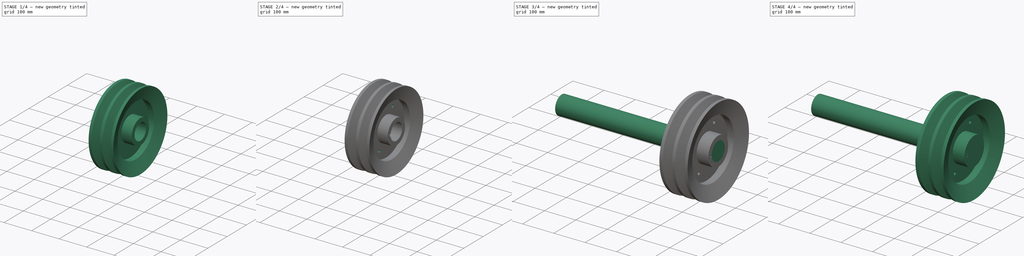
[diagram: build sequence overview — one tinted view per stage of 4, left to right]
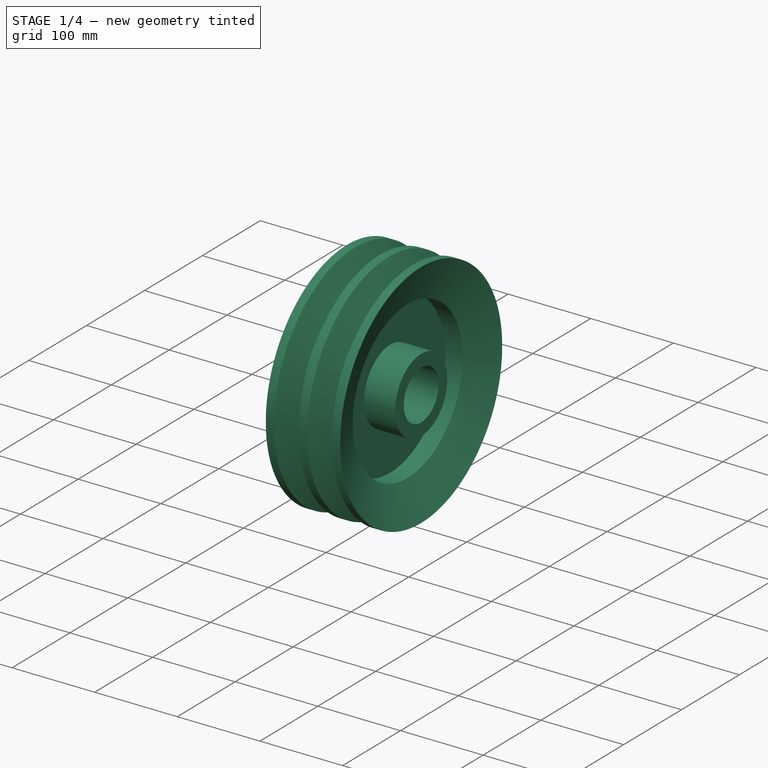
[diagram: stage 1 of 4 — iso view after this stage's code; geometry added in this stage tinted green]
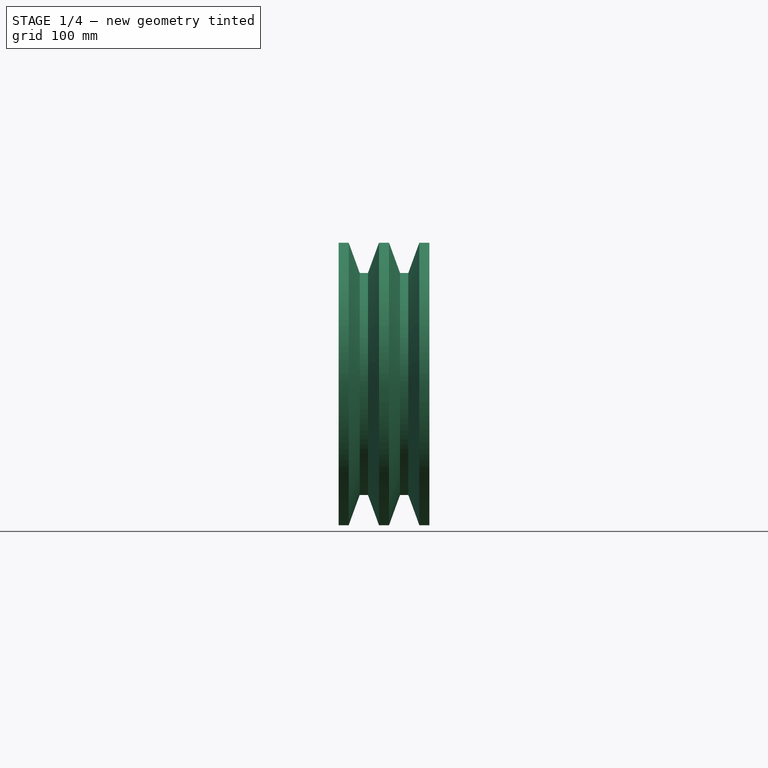
[diagram: stage 1 of 4 — front view after this stage's code; geometry added in this stage tinted green]
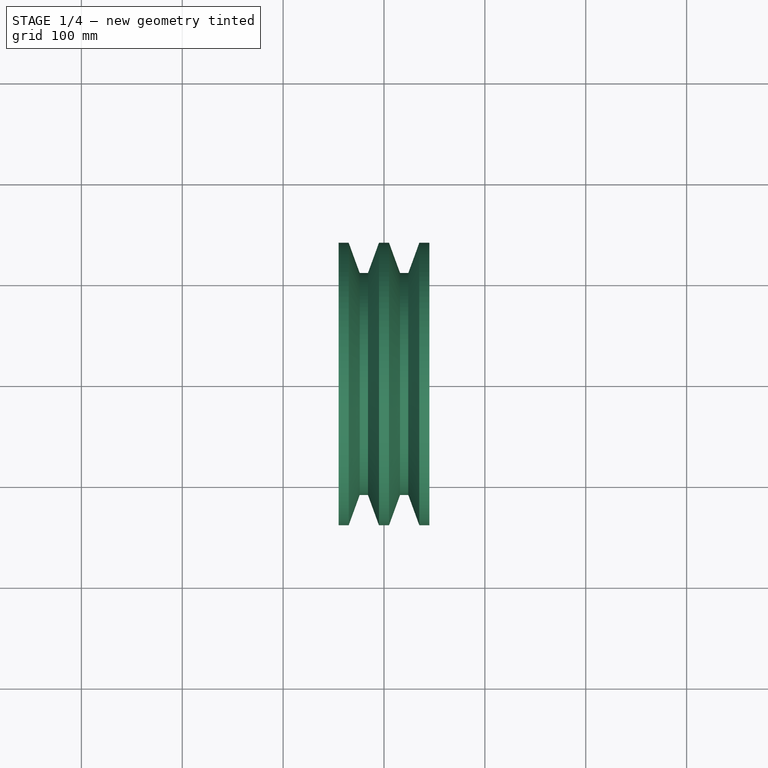
[diagram: stage 1 of 4 — top view after this stage's code; geometry added in this stage tinted green]
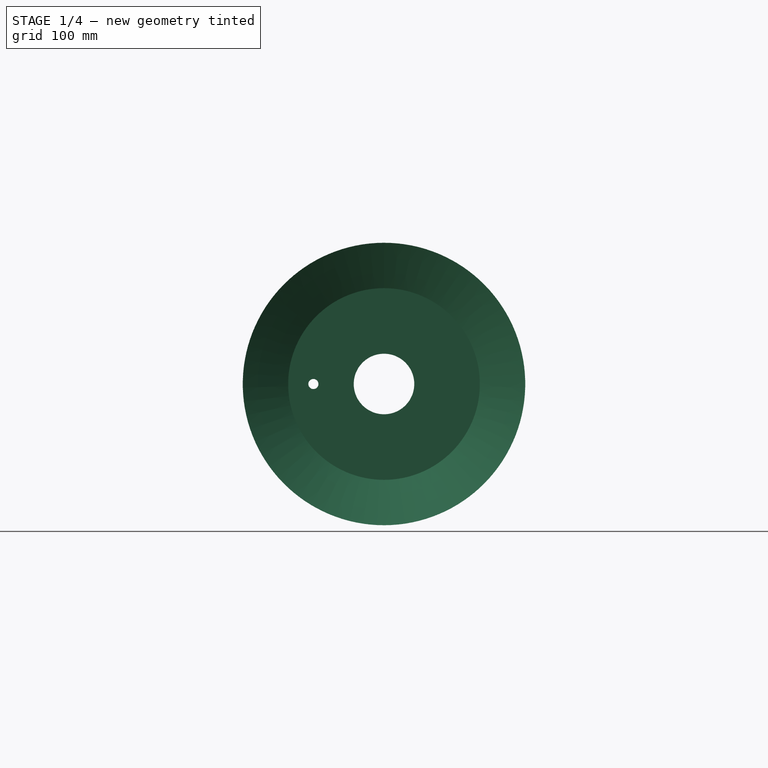
[diagram: stage 1 of 4 — right view after this stage's code; geometry added in this stage tinted green]
FCSTD DOCUMENT  (FreeCAD 0.20R29177 +426 (Git))
Label: Polea
License: All rights reserved
LicenseURL: http://en.wikipedia.org/wiki/All_rights_reserved
objects: Sketcher::SketchObject×9, PartDesign::Body×4, PartDesign::Pad×3, PartDesign::Revolution×2, PartDesign::Pocket×2, PartDesign::PolarPattern×1, PartDesign::FeatureBase×1
note: 29 computed .brp shape members not serialized (recipe doc carries the construction recipe); baked Part::Feature solids carry a one-line shape summary decoded from their .brp

FEATURE [Sketcher::SketchObject] Sketch
  FullyConstrained = false
  MapMode = 5
  Placement = pos=(0,0,0) rot=(1,0,0;1.5708rad)
  Support = -> [XZ_Plane]
  sketch-geometry (21):
    g0: LineSegment StartX=-7.5 StartY=45 StartZ=0 EndX=-45 EndY=45 EndZ=0
    g1: LineSegment StartX=-45 StartY=45 StartZ=0 EndX=-45 EndY=30 EndZ=0
    g2: LineSegment StartX=-45 StartY=30 StartZ=0 EndX=45 EndY=30 EndZ=0
    g3: LineSegment StartX=45 StartY=30 StartZ=0 EndX=45 EndY=45 EndZ=0
    g4: LineSegment StartX=45 StartY=45 StartZ=0 EndX=7.5 EndY=45 EndZ=0
    g5: LineSegment StartX=7.5 StartY=45 StartZ=0 EndX=7.5 EndY=95 EndZ=0
    g6: LineSegment StartX=7.5 StartY=95 StartZ=0 EndX=28.6213 EndY=95 EndZ=0
    g7: LineSegment StartX=28.6213 StartY=95 StartZ=0 EndX=45 EndY=140 EndZ=0
    g8: LineSegment StartX=45 StartY=140 StartZ=0 EndX=35 EndY=140 EndZ=0
    g9: LineSegment StartX=35 StartY=140 StartZ=0 EndX=24.0809 EndY=110 EndZ=0
    g10: LineSegment StartX=24.0809 StartY=110 StartZ=0 EndX=15.9191 EndY=110 EndZ=0
    g11: LineSegment StartX=15.9191 StartY=110 StartZ=0 EndX=5 EndY=140 EndZ=0
    g12: LineSegment StartX=5 StartY=140 StartZ=0 EndX=-5 EndY=140 EndZ=0
    g13: LineSegment StartX=-5 StartY=140 StartZ=0 EndX=-15.9191 EndY=110 EndZ=0
    g14: LineSegment StartX=-15.9191 StartY=110 StartZ=0 EndX=-24.0809 EndY=110 EndZ=0
    g15: LineSegment StartX=-24.0809 StartY=110 StartZ=0 EndX=-35 EndY=140 EndZ=0
    g16: LineSegment StartX=-35 StartY=140 StartZ=0 EndX=-45 EndY=140 EndZ=0
    g17: LineSegment StartX=-45 StartY=140 StartZ=0 EndX=-28.6213 EndY=95 EndZ=0
    g18: LineSegment StartX=-28.6213 StartY=95 StartZ=0 EndX=-7.5 EndY=95 EndZ=0
    g19: LineSegment StartX=-7.5 StartY=95 StartZ=0 EndX=-7.5 EndY=45 EndZ=0
    g20: LineSegment StartX=20 StartY=140.404 StartZ=0 EndX=20 EndY=98.5071 EndZ=0
  constraints (56):
    c: Horizontal(g0)
    c: Coincident(g0,g1)
    c: Coincident(g1,g2)
    c: Coincident(g2,g3)
    c: Coincident(g3,g4)
    c: Horizontal(g4)
    c: Coincident(g4,g5)
    c: Vertical(g5)
    c: Coincident(g5,g6)
    c: Horizontal(g6)
    c: Coincident(g6,g7)
    c: Coincident(g7,g8)
    c: Horizontal(g8)
    c: Coincident(g8,g9)
    c: Coincident(g9,g10)
    c: Horizontal(g10)
    c: Coincident(g10,g11)
    c: Coincident(g11,g12)
    c: Coincident(g12,g13)
    c: Coincident(g13,g14)
    c: Coincident(g14,g15)
    c: Coincident(g15,g16)
    c: Horizontal(g16)
    c: Coincident(g16,g17)
    c: Coincident(g17,g18)
    c: Horizontal(g18)
    c: Coincident(g18,g19)
    c: Coincident(g19,g0)
    c: DistanceX(g2,g2) = 90
    c: Vertical(g1)
    c: Vertical(g3)
    c: Symmetric(g1,g2,g-2)
    c: DistanceY(g-1,g2) = 30
    c: DistanceY(g-1,g3) = 45
    c: DistanceX(g0,g4) = 15
    c: Symmetric(g4,g0,g-2)
    c: Equal(g19,g5)
    c: DistanceY(g-1,g6) = 95
    c: Vertical(g19)
    c: DistanceY(g-1,g7) = 140
    c: Equal(g17,g7)
    c: Equal(g15,g9)
    c: Equal(g10,g14)
    c: DistanceX(g16,g7) = 90
    c: Symmetric(g16,g7,g-2)
    c: Symmetric(g12,g11,g-2)
    c: DistanceX(g15,g12) = 30
    c: Equal(g16,g8)
    c: DistanceY(g9,g8) = 30
    c: Equal(g11,g13)
    c: DistanceX(g8,g8) = 10
    c: Horizontal(g14)
    c: Angle(g9,g11) = 0.698132
    c: Symmetric(g9,g10,g20)
    c: Symmetric(g11,g8,g20)
    c: Angle(g7,g20) = 0.349066
FEATURE [PartDesign::Revolution] Revolution
  Angle = 360
  Axis = (1,0,0)
  Base = (0,0,0)
  Placement = pos=(0,0,0) rot=(1,0,0;1.5708rad)
  Profile = -> Sketch
  ReferenceAxis = -> Sketch [H_Axis]
FEATURE [Sketcher::SketchObject] Sketch001
  FullyConstrained = true
  MapMode = 5
  Placement = pos=(7.5,0,0) rot=(0.707107,0,0.707107;3.14159rad)
  Support = -> [Revolution]
  sketch-geometry (1):
    g0: Circle CenterX=0 CenterY=70 CenterZ=0 NormalX=0 NormalY=0 NormalZ=1 AngleXU=0 Radius=5
  constraints (3):
    c: PointOnObject(g0,g-2)
    c: Diameter(g0) = 10
    c: DistanceY(g-1,g0) = 70
FEATURE [PartDesign::Pocket] Pocket
  BaseFeature = -> Revolution
  Direction = (-1,0,2e-16)
  Length = 5
  Length2 = 5
  Placement = pos=(0,0,0) rot=(1,0,0;1.5708rad)
  Profile = -> Sketch001
  ReferenceAxis = -> Sketch001 [N_Axis]
  Type = 1
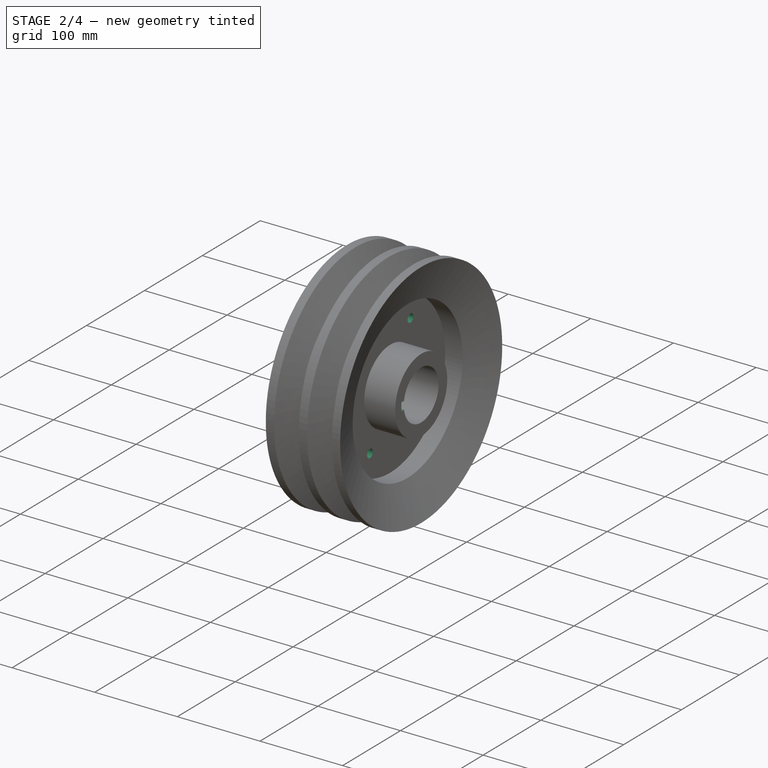
[diagram: stage 2 of 4 — iso view after this stage's code; geometry added in this stage tinted green]
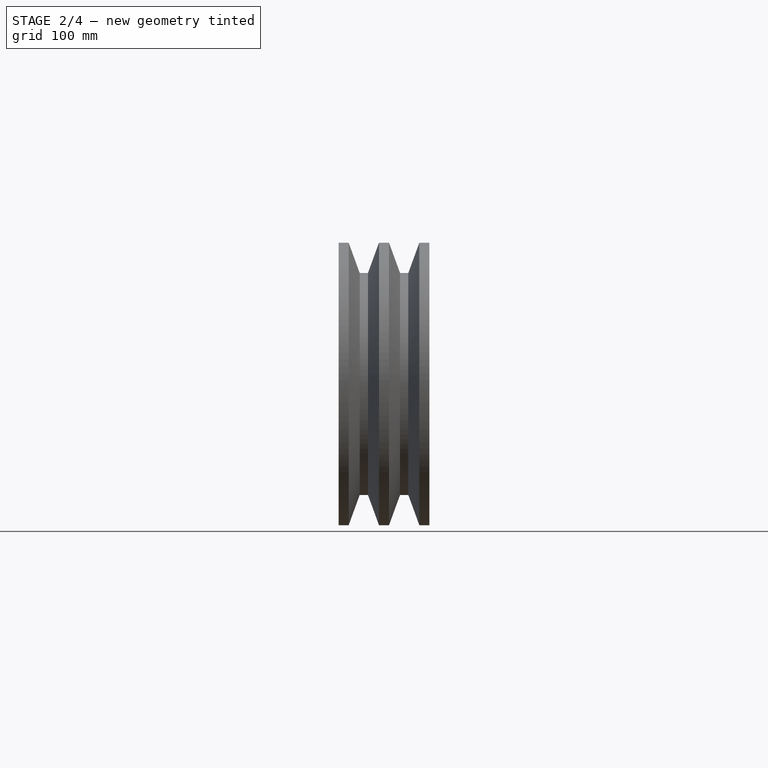
[diagram: stage 2 of 4 — front view after this stage's code; geometry added in this stage tinted green]
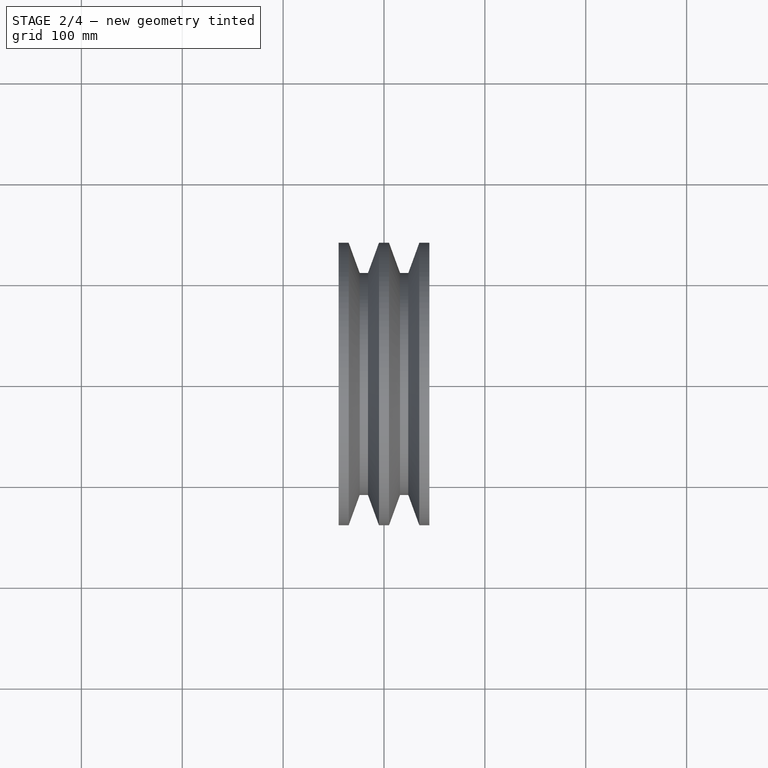
[diagram: stage 2 of 4 — top view after this stage's code; geometry added in this stage tinted green]
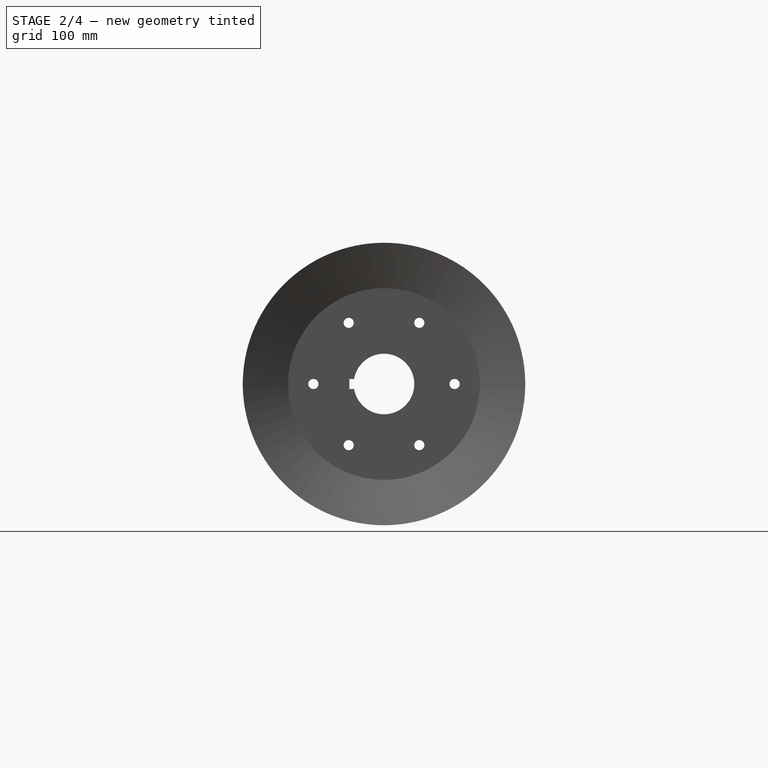
[diagram: stage 2 of 4 — right view after this stage's code; geometry added in this stage tinted green]
FEATURE [PartDesign::PolarPattern] PolarPattern
  Angle = 360
  Axis = -> Sketch001 [N_Axis]
  BaseFeature = -> Pocket
  Occurrences = 6
  Originals = -> [Pocket]
  Placement = pos=(0,0,0) rot=(1,0,0;1.5708rad)
FEATURE [PartDesign::Body] Body002  label="Eje 2"
  Group = -> [Sketch007,Revolution001]
  Origin = -> Origin002
  Tip = -> Revolution001
FEATURE [Sketcher::SketchObject] Sketch008
  FullyConstrained = false
  MapMode = 5
  Placement = pos=(45,0,0) rot=(0.707107,0,0.707107;3.14159rad)
  Support = -> [PolarPattern]
  sketch-geometry (4):
    g0: LineSegment StartX=5 StartY=34.2886 StartZ=0 EndX=-5 EndY=34.2886 EndZ=0
    g1: LineSegment StartX=-5 StartY=34.2886 StartZ=0 EndX=-5 EndY=29.2886 EndZ=0
    g2: LineSegment StartX=-5 StartY=29.2886 StartZ=0 EndX=5 EndY=29.2886 EndZ=0
    g3: LineSegment StartX=5 StartY=29.2886 StartZ=0 EndX=5 EndY=34.2886 EndZ=0
  constraints (10):
    c: Coincident(g0,g1)
    c: Coincident(g1,g2)
    c: Coincident(g2,g3)
    c: Coincident(g3,g0)
    c: Horizontal(g0)
    c: Vertical(g1)
    c: Vertical(g3)
    c: DistanceX(g2,g2) = 10
    c: DistanceY(g3,g3) = 5
    c: Symmetric(g2,g1,g-2)
FEATURE [PartDesign::Pocket] Pocket001
  BaseFeature = -> PolarPattern
  Direction = (-1,0,2e-16)
  Length = 90
  Length2 = 5
  Placement = pos=(0,0,0) rot=(1,0,0;1.5708rad)
  Profile = -> Sketch008
  ReferenceAxis = -> Sketch008 [N_Axis]
  Type = 0
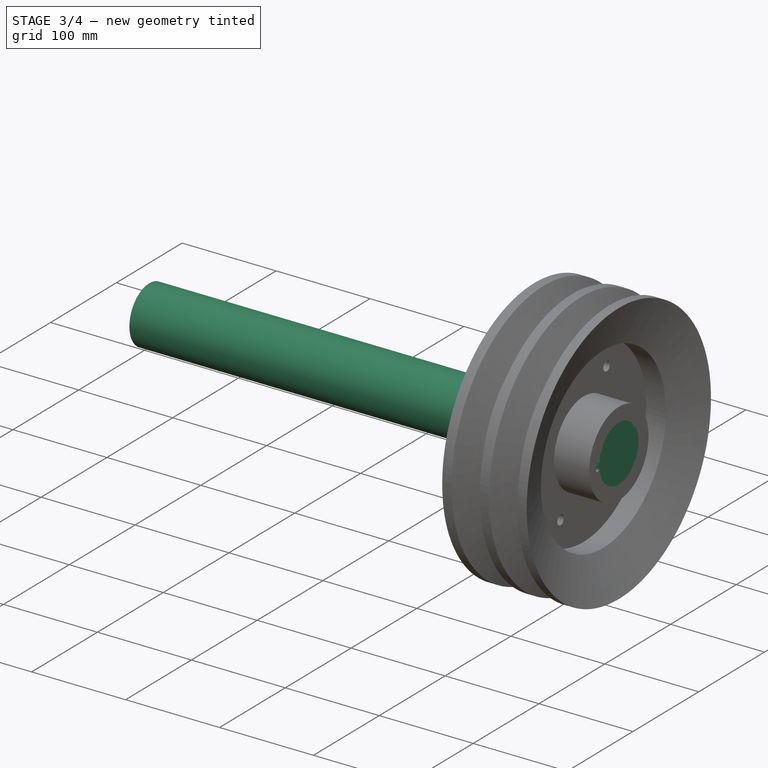
[diagram: stage 3 of 4 — iso view after this stage's code; geometry added in this stage tinted green]
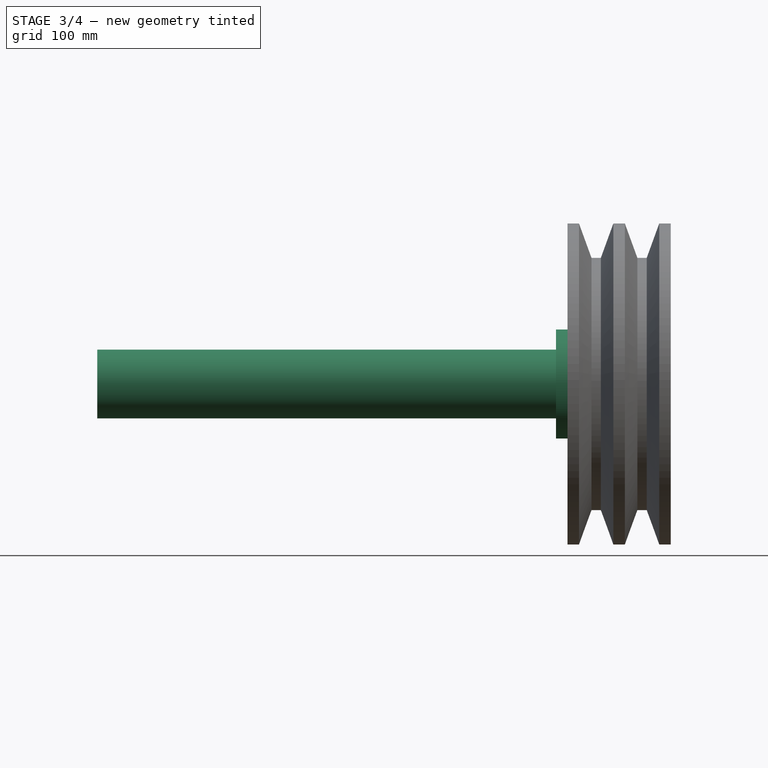
[diagram: stage 3 of 4 — front view after this stage's code; geometry added in this stage tinted green]
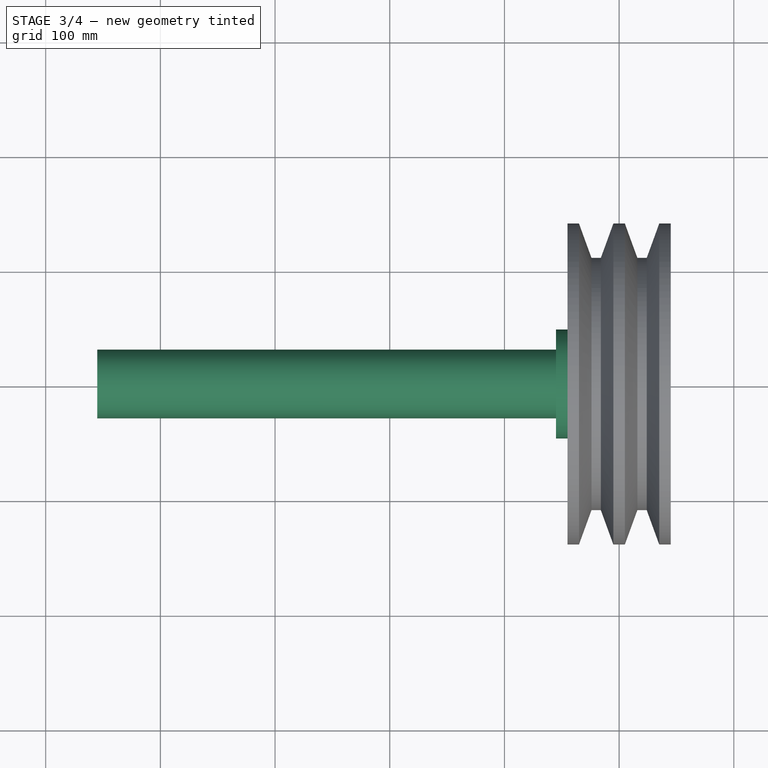
[diagram: stage 3 of 4 — top view after this stage's code; geometry added in this stage tinted green]
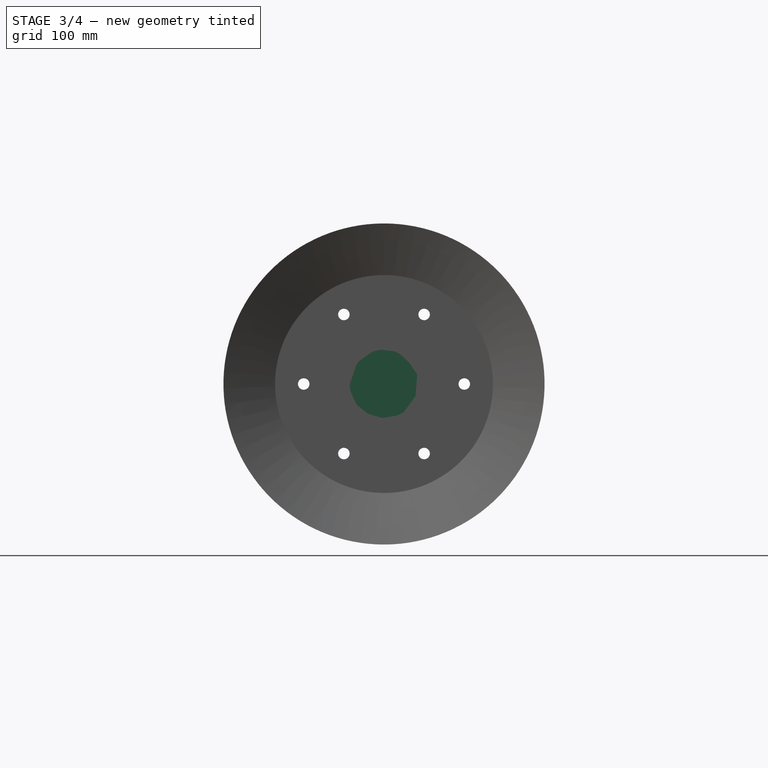
[diagram: stage 3 of 4 — right view after this stage's code; geometry added in this stage tinted green]
FEATURE [Sketcher::SketchObject] Sketch002
  FullyConstrained = true
  MapMode = 5
  Placement = pos=(45,0,0) rot=(0.707107,0,0.707107;3.14159rad)
  Support = -> [PolarPattern]
FEATURE [Sketcher::SketchObject] Sketch003
  FullyConstrained = true
  MapMode = 5
  Placement = pos=(0,0,0) rot=(0.57735,0.57735,0.57735;2.0944rad)
  Support = -> [YZ_Plane001]
  sketch-geometry (1):
    g0: Circle CenterX=0 CenterY=0 CenterZ=0 NormalX=0 NormalY=0 NormalZ=1 AngleXU=0 Radius=30
  constraints (2):
    c: Coincident(g0,g-1)
    c: Diameter(g0) = 60
FEATURE [PartDesign::Pad] Pad
  Direction = (1,-2e-16,3e-16)
  Length = 90
  Length2 = 10
  Midplane = true
  Placement = pos=(0,0,0) rot=(0.57735,0.57735,0.57735;2.0944rad)
  Profile = -> Sketch003
  ReferenceAxis = -> Sketch003 [N_Axis]
  Type = 0
FEATURE [PartDesign::Body] Body001  label="Eje 1"
  Group = -> [Sketch003,Pad,Sketch004,Pad001,Sketch005,Sketch006,Pad002]
  Origin = -> Origin001
  Tip = -> Pad002
FEATURE [Sketcher::SketchObject] Sketch007
  FullyConstrained = false
  MapMode = 5
  Placement = pos=(0,0,0) rot=(1,0,0;1.5708rad)
  Support = -> [XZ_Plane002]
  sketch-geometry (8):
    g0: LineSegment StartX=45 StartY=0 StartZ=0 EndX=45 EndY=30 EndZ=0
    g1: LineSegment StartX=45 StartY=30 StartZ=0 EndX=-45 EndY=30 EndZ=0
    g2: LineSegment StartX=-45 StartY=30 StartZ=0 EndX=-45 EndY=47.5 EndZ=0
    g3: LineSegment StartX=-45 StartY=47.5 StartZ=0 EndX=-55 EndY=47.5 EndZ=0
    g4: LineSegment StartX=-55 StartY=47.5 StartZ=0 EndX=-55 EndY=30 EndZ=0
    g5: LineSegment StartX=-55 StartY=30 StartZ=0 EndX=-455 EndY=30 EndZ=0
    g6: LineSegment StartX=-455 StartY=30 StartZ=0 EndX=-455 EndY=0 EndZ=0
    g7: LineSegment StartX=-455 StartY=0 StartZ=0 EndX=45 EndY=0 EndZ=0
  constraints (22):
    c: PointOnObject(g0,g-1)
    c: Vertical(g0)
    c: Coincident(g0,g1)
    c: Coincident(g1,g2)
    c: Vertical(g2)
    c: Coincident(g2,g3)
    c: Horizontal(g3)
    c: Coincident(g3,g4)
    c: Vertical(g4)
    c: Coincident(g4,g5)
    c: Horizontal(g5)
    c: Coincident(g5,g6)
    c: PointOnObject(g6,g-1)
    c: Coincident(g6,g7)
    c: Coincident(g7,g0)
    c: DistanceX(g1,g1) = 90
    c: DistanceY(g0,g0) = 30
    c: DistanceX(g3,g3) = 10
    c: DistanceX(g5,g5) = 400
    c: DistanceY(g4,g4) = 17.5
    c: Symmetric(g0,g1,g-2)
    c: DistanceX(g7,g7) = 500
FEATURE [PartDesign::Revolution] Revolution001
  Angle = 360
  Axis = (1,0,0)
  Base = (0,0,0)
  Placement = pos=(0,0,0) rot=(1,0,0;1.5708rad)
  Profile = -> Sketch007
  ReferenceAxis = -> X_Axis002
FEATURE [PartDesign::Body] Body  label="Polea"
  Group = -> [Sketch,Revolution,Sketch001,Pocket,PolarPattern,Sketch002,Sketch008,Pocket001]
  Origin = -> Origin
  Tip = -> Pocket001
FEATURE [PartDesign::FeatureBase] Clone
  BaseFeature = -> Body
FEATURE [PartDesign::Body] Body003
  BaseFeature = -> Body
  Group = -> [Clone]
  Origin = -> Origin003
  Placement = pos=(-400,0,0) rot=(0,0,-1;0.069813rad)
  Tip = -> Clone
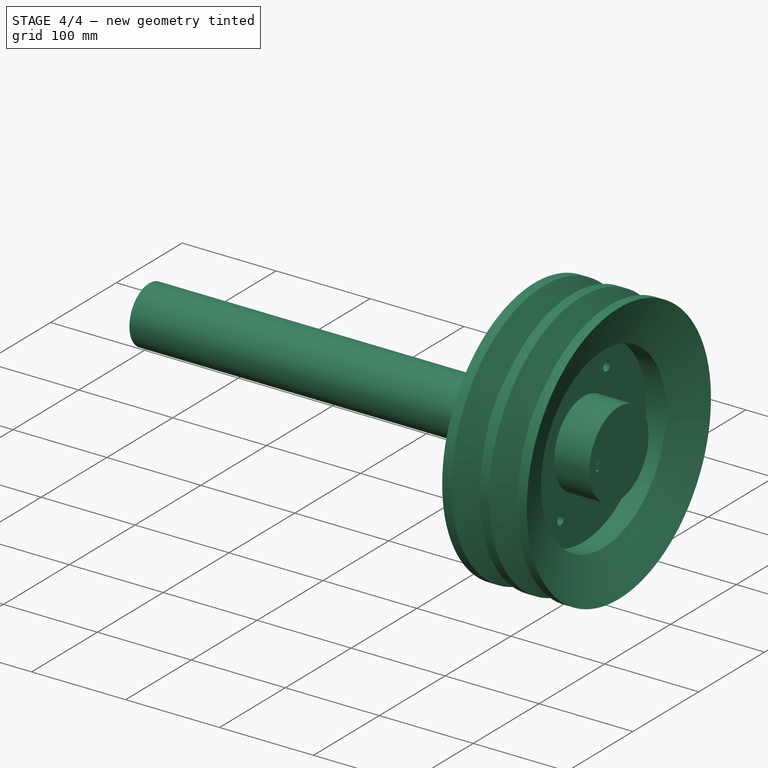
[diagram: stage 4 of 4 — iso view after this stage's code; geometry added in this stage tinted green]
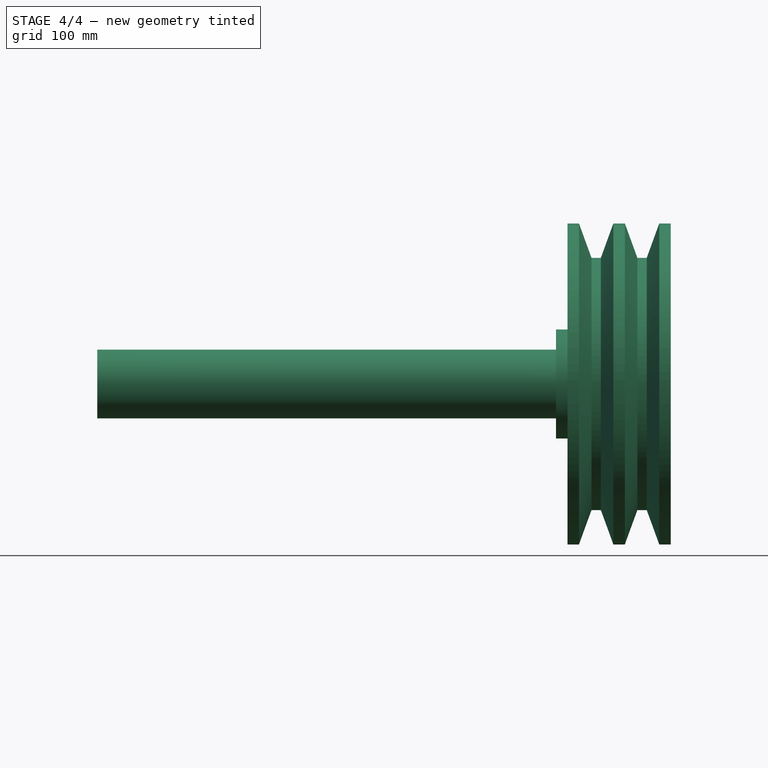
[diagram: stage 4 of 4 — front view after this stage's code; geometry added in this stage tinted green]
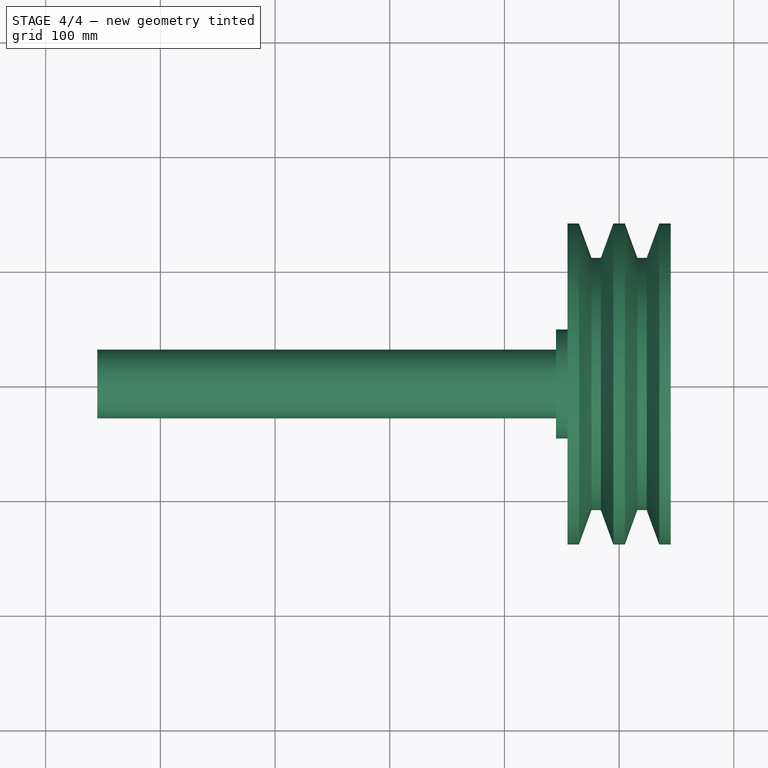
[diagram: stage 4 of 4 — top view after this stage's code; geometry added in this stage tinted green]
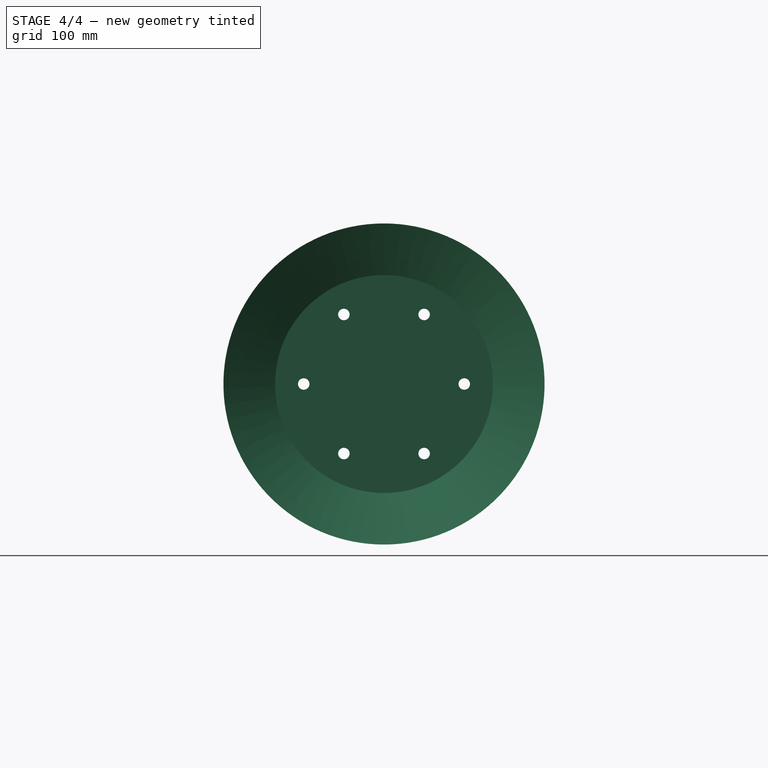
[diagram: stage 4 of 4 — right view after this stage's code; geometry added in this stage tinted green]
FEATURE [Sketcher::SketchObject] Sketch004
  FullyConstrained = true
  MapMode = 5
  Placement = pos=(-45,9.9e-15,-9.9e-15) rot=(0.57735,0.57735,-0.57735;4.18879rad)
  Support = -> [Pad]
  sketch-geometry (1):
    g0: Circle CenterX=0 CenterY=0 CenterZ=0 NormalX=0 NormalY=0 NormalZ=1 AngleXU=0 Radius=47.5
  constraints (2):
    c: Coincident(g0,g-1)
    c: Diameter(g0) = 95
FEATURE [PartDesign::Pad] Pad001
  BaseFeature = -> Pad
  Direction = (-1,4e-16,-4e-16)
  Length = 10
  Length2 = 10
  Placement = pos=(0,0,0) rot=(0.57735,0.57735,0.57735;2.0944rad)
  Profile = -> Sketch004
  ReferenceAxis = -> Sketch004 [N_Axis]
  Type = 0
FEATURE [Sketcher::SketchObject] Sketch005
  FullyConstrained = true
  MapMode = 5
  Placement = pos=(-55,2.48e-14,-2.36e-14) rot=(-0.57735,-0.57735,0.57735;2.0944rad)
  Support = -> [Pad001]
FEATURE [Sketcher::SketchObject] Sketch006
  FullyConstrained = true
  MapMode = 5
  Placement = pos=(-55,2.48e-14,-2.36e-14) rot=(-0.57735,-0.57735,0.57735;2.0944rad)
  Support = -> [Pad001]
  sketch-geometry (1):
    g0: Circle CenterX=0 CenterY=0 CenterZ=0 NormalX=0 NormalY=0 NormalZ=1 AngleXU=0 Radius=30
  constraints (2):
    c: Coincident(g0,g-1)
    c: Diameter(g0) = 60
FEATURE [PartDesign::Pad] Pad002
  BaseFeature = -> Pad001
  Direction = (-1,4e-16,-4e-16)
  Length = 400
  Length2 = 10
  Placement = pos=(0,0,0) rot=(0.57735,0.57735,0.57735;2.0944rad)
  Profile = -> Sketch006
  ReferenceAxis = -> Sketch006 [N_Axis]
  Type = 0
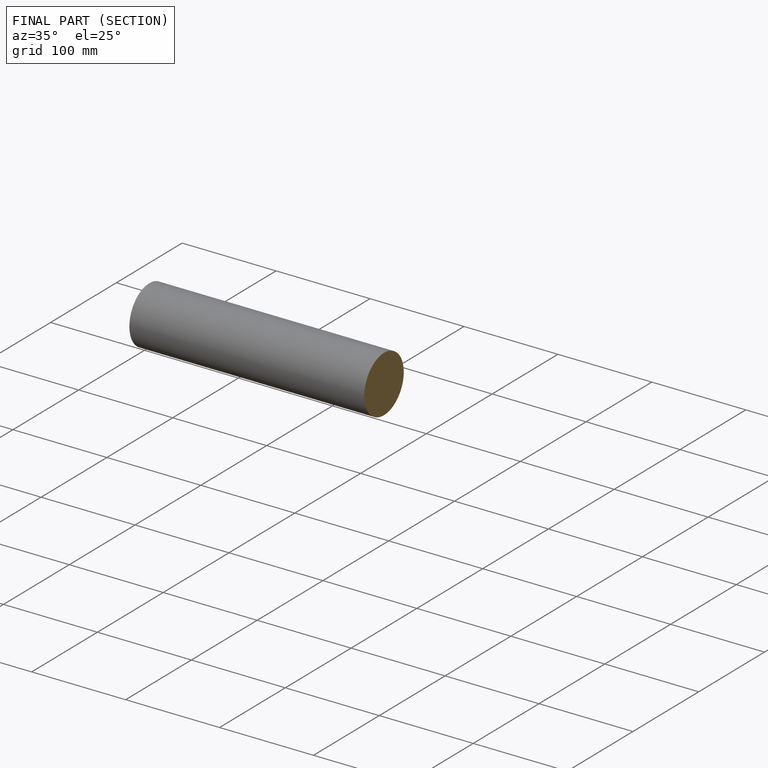
[diagram: finished part — half-section view (interior)]
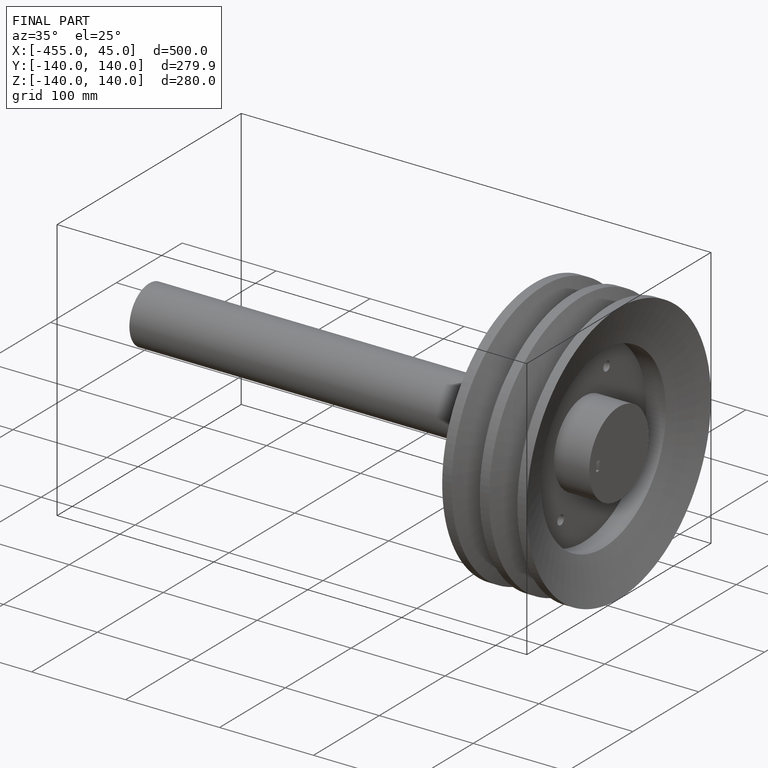
[diagram: finished part — iso view with bounding-box wireframe]
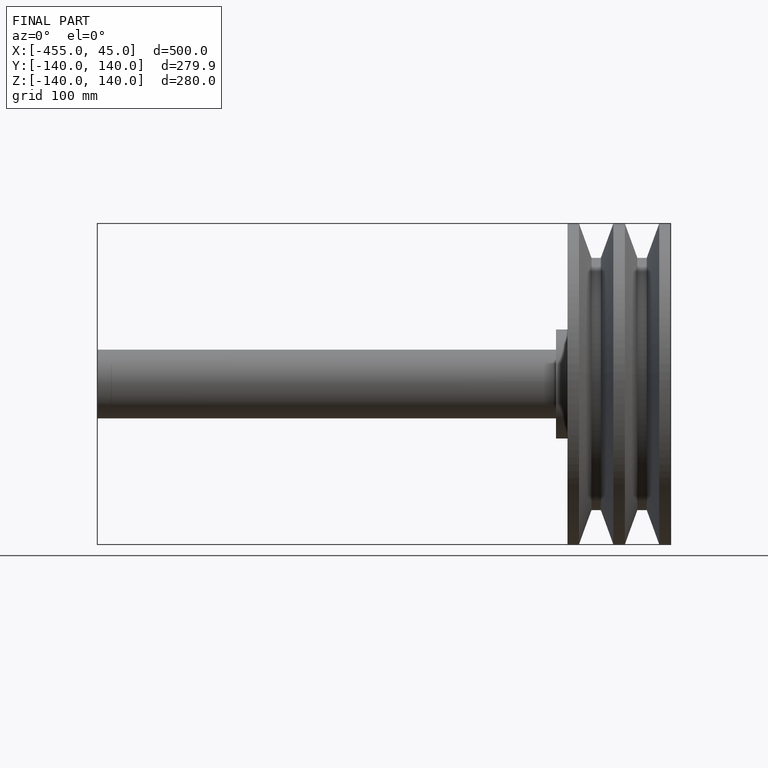
[diagram: finished part — front view with bounding-box wireframe]
